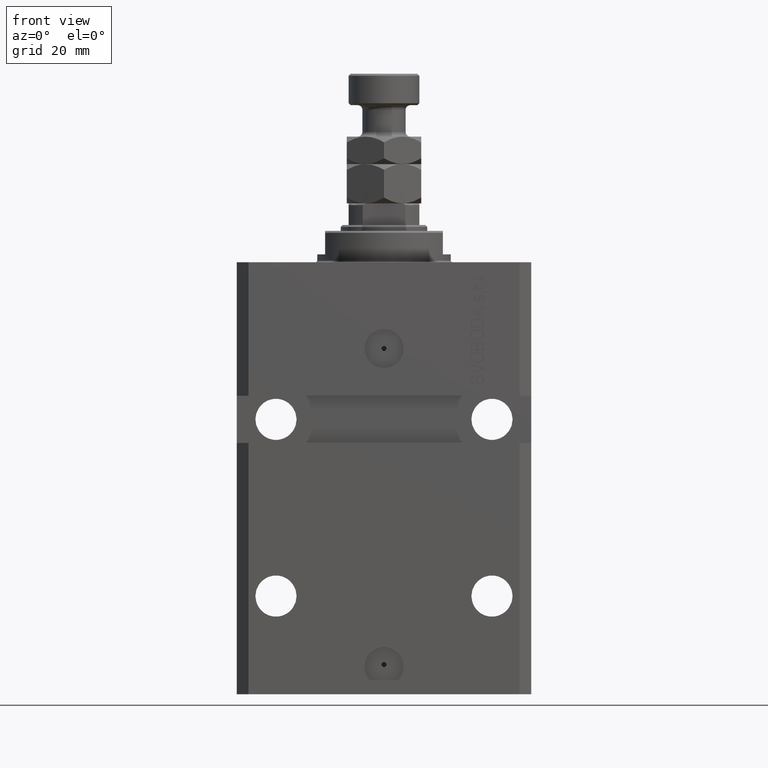
[diagram: clean part render]
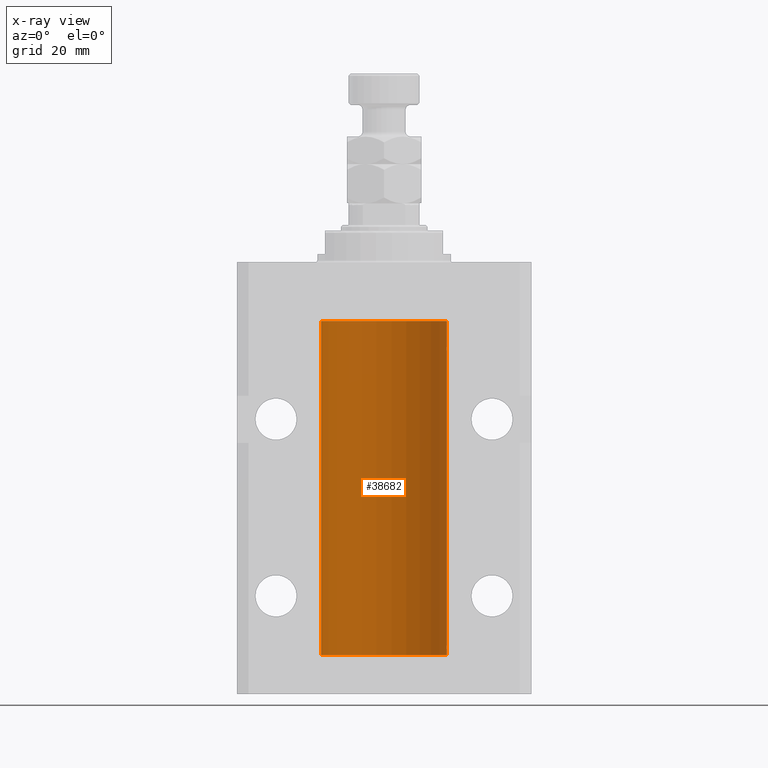
[diagram: x-ray — body ghosted, one internal face saturated and labeled with its STEP entity id]
A machine part, front view, then the same camera in x-ray: the body is ghosted and one INTERNAL B-rep face — a face not visible from any outside direction — is saturated and labeled: STEP entity #38682.
In plain terms, the highlighted cylindrical surface (partial cylindrical patch) has radius 16 mm, axis along (0, 0, 1).
Its self-contained STEP definition (entity closure, byte-faithful):
#243 = CARTESIAN_POINT ( 'NONE',  ( 16.00000000000000000, -7.378931128587136680E-16, -22.62500000000000000 ) ) ;
#399 = EDGE_CURVE ( 'NONE', #26364, #30620, #24585, .T. ) ;
#720 = CARTESIAN_POINT ( 'NONE',  ( 15.99228275317786441, 0.5002975944204781644, -97.61642014570176684 ) ) ;
#2443 = ORIENTED_EDGE ( 'NONE', *, *, #399, .F. ) ;
#2637 = LINE ( 'NONE', #9839, #21000 ) ;
#3489 = CARTESIAN_POINT ( 'NONE',  ( 15.99548458234361803, 0.3844468804815583396, -22.49947786696350960 ) ) ;
#3909 = VERTEX_POINT ( 'NONE', #23640 ) ;
#4411 = ORIENTED_EDGE ( 'NONE', *, *, #11470, .F. ) ;
#5752 = DIRECTION ( 'NONE',  ( -0.000000000000000000, -0.000000000000000000, 1.000000000000000000 ) ) ;
#6125 = DIRECTION ( 'NONE',  ( -0.000000000000000000, -0.000000000000000000, 1.000000000000000000 ) ) ;
#6713 = CARTESIAN_POINT ( 'NONE',  ( 15.99934183755191341, 0.1636877470526788836, -22.60872690654067796 ) ) ;
#6793 = CARTESIAN_POINT ( 'NONE',  ( 15.98778830858104172, 0.6249999999996183053, -21.91847885046212951 ) ) ;
#6973 = CARTESIAN_POINT ( 'NONE',  ( 15.98778830858101152, 0.6250000000001202372, -22.16311639173018477 ) ) ;
#6976 = B_SPLINE_CURVE_WITH_KNOTS ( 'NONE', 3,
 ( #7045, #6793, #29825, #22155, #11234, #26104, #41463, #41224 ),
 .UNSPECIFIED., .F., .F.,
 ( 4, 2, 2, 4 ),
 ( 0.0009773326288699671956, 0.001221554802188560499, 0.001465776975507153803, 0.001954221322144333254 ),
 .UNSPECIFIED. ) ;
#7045 = CARTESIAN_POINT ( 'NONE',  ( 15.98778830858070954, 0.6250000000079481977, -21.99999999999914735 ) ) ;
#7132 = CARTESIAN_POINT ( 'NONE',  ( 0.000000000000000000, 0.000000000000000000, -100.0999999999999943 ) ) ;
#7395 = CARTESIAN_POINT ( 'NONE',  ( -16.00000000000000000, 1.959434878635765131E-15, -100.0999999999999943 ) ) ;
#7439 = CARTESIAN_POINT ( 'NONE',  ( 15.98778830858070954, 0.6250000000080517815, -97.99999999999916156 ) ) ;
#8160 = CARTESIAN_POINT ( 'NONE',  ( 15.99070695999103542, 0.5461439696927204990, -97.68526802364048933 ) ) ;
#9035 = EDGE_CURVE ( 'NONE', #47649, #3909, #2637, .T. ) ;
#9220 = ORIENTED_EDGE ( 'NONE', *, *, #26034, .T. ) ;
#9527 = VERTEX_POINT ( 'NONE', #41961 ) ;
#9839 = CARTESIAN_POINT ( 'NONE',  ( 16.00000000000000000, 0.000000000000000000, -100.0999999999999943 ) ) ;
#10998 = ORIENTED_EDGE ( 'NONE', *, *, #29021, .T. ) ;
#11234 = CARTESIAN_POINT ( 'NONE',  ( 15.99228275317787507, 0.5002975944204003378, -21.61642014570181303 ) ) ;
#11470 = EDGE_CURVE ( 'NONE', #40983, #26364, #13070, .T. ) ;
#13070 = CIRCLE ( 'NONE', #42324, 16.00000000000000000 ) ;
#13238 = ORIENTED_EDGE ( 'NONE', *, *, #48320, .T. ) ;
#13364 = FACE_OUTER_BOUND ( 'NONE', #27561, .T. ) ;
#14093 = DIRECTION ( 'NONE',  ( -0.000000000000000000, -0.000000000000000000, 1.000000000000000000 ) ) ;
#14163 = ORIENTED_EDGE ( 'NONE', *, *, #16455, .T. ) ;
#14342 = CARTESIAN_POINT ( 'NONE',  ( 15.98778830858070954, 0.6250000000080517815, -97.99999999999916156 ) ) ;
#15471 = CARTESIAN_POINT ( 'NONE',  ( 0.000000000000000000, 0.000000000000000000, -15.00000000000000000 ) ) ;
#16455 = EDGE_CURVE ( 'NONE', #35685, #29570, #25273, .T. ) ;
#16832 = CARTESIAN_POINT ( 'NONE',  ( 0.000000000000000000, 0.000000000000000000, -100.0999999999999943 ) ) ;
#17033 = B_SPLINE_CURVE_WITH_KNOTS ( 'NONE', 3,
 ( #18554, #22272, #25987, #34149, #22761, #18800, #37395, #14342 ),
 .UNSPECIFIED., .F., .F.,
 ( 4, 2, 2, 4 ),
 ( 1.783888443149829469E-18, 0.0002443331572175257886, 0.0004886663144350497342, 0.0009773326288700682433 ),
 .UNSPECIFIED. ) ;
#18354 = CARTESIAN_POINT ( 'NONE',  ( 16.00000000000000000, 0.08261762387942135633, -22.62499999999996803 ) ) ;
#18554 = CARTESIAN_POINT ( 'NONE',  ( 16.00000000000000000, -1.835653844722709729E-15, -98.62500000000000000 ) ) ;
#18592 = B_SPLINE_CURVE_WITH_KNOTS ( 'NONE', 3,
 ( #243, #18354, #6713, #25786, #3489, #45138, #6973, #18605 ),
 .UNSPECIFIED., .F., .F.,
 ( 4, 2, 2, 4 ),
 ( 1.864948331951035013E-18, 0.0002443331572174913110, 0.0004886663144349807789, 0.0009773326288699671956 ),
 .UNSPECIFIED. ) ;
#18605 = CARTESIAN_POINT ( 'NONE',  ( 15.98778830858070954, 0.6250000000079481977, -21.99999999999914735 ) ) ;
#18782 = CARTESIAN_POINT ( 'NONE',  ( 16.00000000000000000, 0.000000000000000000, -100.0999999999999943 ) ) ;
#18800 = CARTESIAN_POINT ( 'NONE',  ( 15.99070366873610283, 0.5574063959867601170, -98.32639436837558833 ) ) ;
#19679 = DIRECTION ( 'NONE',  ( 1.000000000000000000, 0.000000000000000000, 0.000000000000000000 ) ) ;
#21000 = VECTOR ( 'NONE', #6125, 1000.000000000000000 ) ;
#22155 = CARTESIAN_POINT ( 'NONE',  ( 15.99070695999104252, 0.5461439696926362330, -21.68526802364053552 ) ) ;
#22272 = CARTESIAN_POINT ( 'NONE',  ( 16.00000000000001066, 0.08261762387943044628, -98.62500000000001421 ) ) ;
#22761 = CARTESIAN_POINT ( 'NONE',  ( 15.99548458234361448, 0.3844468804816183471, -98.49947786696355934 ) ) ;
#23274 = CARTESIAN_POINT ( 'NONE',  ( 16.00000000000013145, 3.665532692826917502E-13, -97.37499999999657518 ) ) ;
#23526 = CARTESIAN_POINT ( 'NONE',  ( 15.98778830858103817, 0.6249999999997223332, -97.91847885046210820 ) ) ;
#23640 = CARTESIAN_POINT ( 'NONE',  ( 16.00000000000000000, 0.000000000000000000, -15.00000000000000000 ) ) ;
#23650 = DIRECTION ( 'NONE',  ( 0.000000000000000000, 0.000000000000000000, 1.000000000000000000 ) ) ;
#24489 = CIRCLE ( 'NONE', #39534, 16.00000000000000000 ) ;
#24549 = CARTESIAN_POINT ( 'NONE',  ( 16.00000000000000000, 0.000000000000000000, -100.0999999999999943 ) ) ;
#24585 = LINE ( 'NONE', #39700, #42040 ) ;
#25000 = VERTEX_POINT ( 'NONE', #42594 ) ;
#25227 = EDGE_CURVE ( 'NONE', #3909, #30620, #24489, .T. ) ;
#25273 = LINE ( 'NONE', #24549, #47275 ) ;
#25786 = CARTESIAN_POINT ( 'NONE',  ( 15.99707608081895494, 0.3151028052309814975, -22.54594170697728117 ) ) ;
#25987 = CARTESIAN_POINT ( 'NONE',  ( 15.99934183755190986, 0.1636877470527013101, -98.60872690654072414 ) ) ;
#26034 = EDGE_CURVE ( 'NONE', #29570, #40628, #18592, .T. ) ;
#26104 = CARTESIAN_POINT ( 'NONE',  ( 15.99711856062700122, 0.3252985083513916242, -21.44140297987714661 ) ) ;
#26364 = VERTEX_POINT ( 'NONE', #7395 ) ;
#27561 = EDGE_LOOP ( 'NONE', ( #2443, #4411, #32791, #40911, #10998, #14163, #9220, #13238, #41458, #39839 ) ) ;
#28283 = CARTESIAN_POINT ( 'NONE',  ( 16.00000000000000000, 0.000000000000000000, -100.0999999999999943 ) ) ;
#28474 = DIRECTION ( 'NONE',  ( 1.000000000000000000, 0.000000000000000000, 0.000000000000000000 ) ) ;
#29021 = EDGE_CURVE ( 'NONE', #9527, #35685, #44387, .T. ) ;
#29570 = VERTEX_POINT ( 'NONE', #39500 ) ;
#29825 = CARTESIAN_POINT ( 'NONE',  ( 15.98844460043492077, 0.6087869699336542206, -21.83657454967558564 ) ) ;
#30454 = CARTESIAN_POINT ( 'NONE',  ( 15.99711856062700477, 0.3252985083514284281, -97.44140297987712529 ) ) ;
#30620 = VERTEX_POINT ( 'NONE', #36509 ) ;
#32791 = ORIENTED_EDGE ( 'NONE', *, *, #40220, .T. ) ;
#33398 = DIRECTION ( 'NONE',  ( -0.000000000000000000, -0.000000000000000000, 1.000000000000000000 ) ) ;
#33629 = DIRECTION ( 'NONE',  ( 0.000000000000000000, 0.000000000000000000, 1.000000000000000000 ) ) ;
#34001 = CARTESIAN_POINT ( 'NONE',  ( 16.00000000000013145, 3.665532692826917502E-13, -97.37499999999657518 ) ) ;
#34149 = CARTESIAN_POINT ( 'NONE',  ( 15.99707608081895138, 0.3151028052310259620, -98.54594170697734512 ) ) ;
#34666 = CARTESIAN_POINT ( 'NONE',  ( 15.99999999999999645, 0.1631343969470158417, -97.37500000000021316 ) ) ;
#35685 = VERTEX_POINT ( 'NONE', #34001 ) ;
#36509 = CARTESIAN_POINT ( 'NONE',  ( -16.00000000000000000, 1.959434878635765131E-15, -15.00000000000000000 ) ) ;
#37395 = CARTESIAN_POINT ( 'NONE',  ( 15.98778830858101685, 0.6250000000002223777, -98.16311639173024162 ) ) ;
#38042 = CARTESIAN_POINT ( 'NONE',  ( 15.98778830858070954, 0.6250000000079481977, -21.99999999999914735 ) ) ;
#38682 = ADVANCED_FACE ( 'NONE', ( #13364 ), #47588, .F. ) ;
#38786 = EDGE_CURVE ( 'NONE', #25000, #9527, #17033, .T. ) ;
#39500 = CARTESIAN_POINT ( 'NONE',  ( 16.00000000000000000, -7.378931128587136680E-16, -22.62500000000000000 ) ) ;
#39534 = AXIS2_PLACEMENT_3D ( 'NONE', #15471, #23650, #19679 ) ;
#39662 = DIRECTION ( 'NONE',  ( -0.000000000000000000, -0.000000000000000000, 1.000000000000000000 ) ) ;
#39700 = CARTESIAN_POINT ( 'NONE',  ( -16.00000000000000000, 1.959434878635765131E-15, -100.0999999999999943 ) ) ;
#39839 = ORIENTED_EDGE ( 'NONE', *, *, #25227, .T. ) ;
#40220 = EDGE_CURVE ( 'NONE', #40983, #25000, #48548, .T. ) ;
#40628 = VERTEX_POINT ( 'NONE', #38042 ) ;
#40911 = ORIENTED_EDGE ( 'NONE', *, *, #38786, .T. ) ;
#40983 = VERTEX_POINT ( 'NONE', #28283 ) ;
#41224 = CARTESIAN_POINT ( 'NONE',  ( 16.00000000000013145, 3.665532680419208314E-13, -21.37499999999658229 ) ) ;
#41458 = ORIENTED_EDGE ( 'NONE', *, *, #9035, .T. ) ;
#41463 = CARTESIAN_POINT ( 'NONE',  ( 15.99999999999999289, 0.1631343969470014366, -21.37500000000020606 ) ) ;
#41961 = CARTESIAN_POINT ( 'NONE',  ( 15.98778830858070954, 0.6250000000080517815, -97.99999999999916156 ) ) ;
#42040 = VECTOR ( 'NONE', #5752, 1000.000000000000000 ) ;
#42324 = AXIS2_PLACEMENT_3D ( 'NONE', #7132, #33629, #48289 ) ;
#42594 = CARTESIAN_POINT ( 'NONE',  ( 16.00000000000000000, -1.835653844722709729E-15, -98.62500000000000000 ) ) ;
#43158 = AXIS2_PLACEMENT_3D ( 'NONE', #16832, #14093, #28474 ) ;
#44387 = B_SPLINE_CURVE_WITH_KNOTS ( 'NONE', 3,
 ( #7439, #23526, #48851, #8160, #720, #30454, #34666, #23274 ),
 .UNSPECIFIED., .F., .F.,
 ( 4, 2, 2, 4 ),
 ( 0.0009773326288700682433, 0.001221554802188685399, 0.001465776975507302772, 0.001954221322144537518 ),
 .UNSPECIFIED. ) ;
#45138 = CARTESIAN_POINT ( 'NONE',  ( 15.99070366873610638, 0.5574063959866681905, -22.32639436837549596 ) ) ;
#46353 = VECTOR ( 'NONE', #33398, 1000.000000000000000 ) ;
#47275 = VECTOR ( 'NONE', #39662, 1000.000000000000000 ) ;
#47588 = CYLINDRICAL_SURFACE ( 'NONE', #43158, 16.00000000000000000 ) ;
#47649 = VERTEX_POINT ( 'NONE', #48131 ) ;
#48131 = CARTESIAN_POINT ( 'NONE',  ( 16.00000000000013145, 3.665532680419208314E-13, -21.37499999999658229 ) ) ;
#48289 = DIRECTION ( 'NONE',  ( 1.000000000000000000, 0.000000000000000000, 0.000000000000000000 ) ) ;
#48320 = EDGE_CURVE ( 'NONE', #40628, #47649, #6976, .T. ) ;
#48548 = LINE ( 'NONE', #18782, #46353 ) ;
#48851 = CARTESIAN_POINT ( 'NONE',  ( 15.98844460043491367, 0.6087869699337551399, -97.83657454967556077 ) ) ;